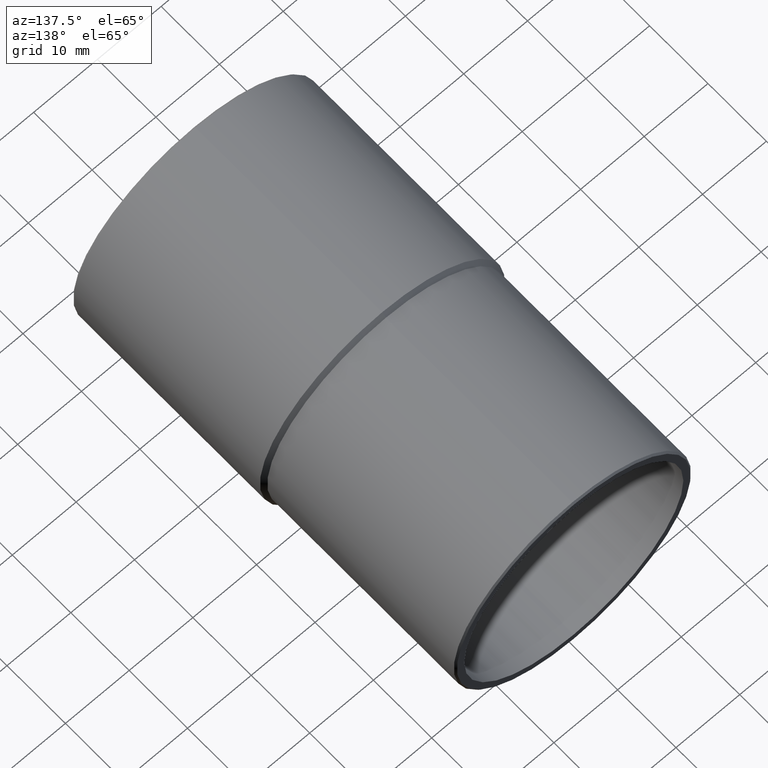
[diagram: clean part render]
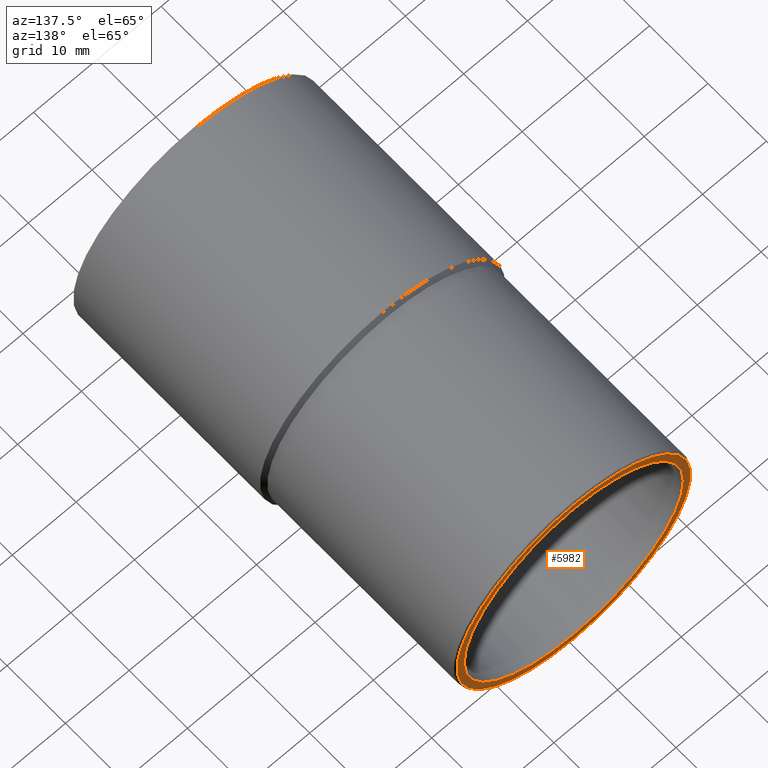
[diagram: same view with one face highlighted and labeled with its STEP entity id]
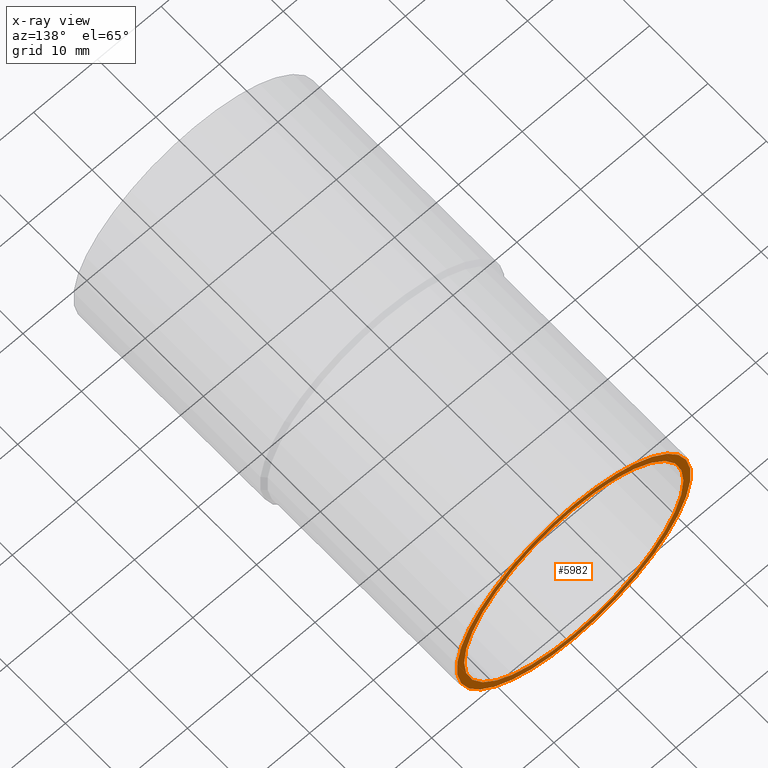
[diagram: x-ray of the same camera — body ghosted, the highlighted face saturated]
A machine part, auxiliary view. The second image highlights one B-rep face of the part: STEP entity #5982.
The next image is the same camera in x-ray: the body ghosted, the highlighted face saturated — about 0% of this face is hidden behind the body in this view.
In plain terms, the highlighted planar face has unit normal (0, 1, 0).
Its self-contained STEP definition (entity closure, byte-faithful):
#428 = CARTESIAN_POINT ( 'NONE',  ( 0.0000000000000000000, 32.50000000000000000, 0.0000000000000000000 ) ) ;
#631 = CIRCLE ( 'NONE', #3716, 17.19999999999999900 ) ;
#633 = VERTEX_POINT ( 'NONE', #4557 ) ;
#870 = VERTEX_POINT ( 'NONE', #5437 ) ;
#1320 = DIRECTION ( 'NONE',  ( 0.0000000000000000000, 0.0000000000000000000, 1.000000000000000000 ) ) ;
#1363 = ORIENTED_EDGE ( 'NONE', *, *, #10457, .T. ) ;
#1734 = EDGE_LOOP ( 'NONE', ( #8905, #4777 ) ) ;
#2038 = FACE_BOUND ( 'NONE', #3531, .T. ) ;
#2295 = CARTESIAN_POINT ( 'NONE',  ( 0.0000000000000000000, 32.50000000000000000, 0.0000000000000000000 ) ) ;
#2441 = PLANE ( 'NONE',  #4983 ) ;
#2445 = CARTESIAN_POINT ( 'NONE',  ( 0.0000000000000000000, 32.50000000000000000, -18.35000000000001900 ) ) ;
#2749 = CARTESIAN_POINT ( 'NONE',  ( 0.0000000000000000000, 32.50000000000000000, 0.0000000000000000000 ) ) ;
#2873 = CARTESIAN_POINT ( 'NONE',  ( 0.0000000000000000000, 32.50000000000000000, 0.0000000000000000000 ) ) ;
#3173 = DIRECTION ( 'NONE',  ( 0.0000000000000000000, 0.0000000000000000000, -1.000000000000000000 ) ) ;
#3531 = EDGE_LOOP ( 'NONE', ( #1363, #3824 ) ) ;
#3629 = DIRECTION ( 'NONE',  ( 0.0000000000000000000, 0.0000000000000000000, -1.000000000000000000 ) ) ;
#3716 = AXIS2_PLACEMENT_3D ( 'NONE', #2749, #8921, #3629 ) ;
#3749 = DIRECTION ( 'NONE',  ( 0.0000000000000000000, 0.0000000000000000000, 1.000000000000000000 ) ) ;
#3824 = ORIENTED_EDGE ( 'NONE', *, *, #7185, .T. ) ;
#3866 = AXIS2_PLACEMENT_3D ( 'NONE', #428, #6614, #1320 ) ;
#3953 = CIRCLE ( 'NONE', #7615, 18.35000000000001900 ) ;
#4190 = DIRECTION ( 'NONE',  ( 0.0000000000000000000, -0.0000000000000000000, 1.000000000000000000 ) ) ;
#4557 = CARTESIAN_POINT ( 'NONE',  ( 0.0000000000000000000, 32.50000000000000000, -17.19999999999999900 ) ) ;
#4777 = ORIENTED_EDGE ( 'NONE', *, *, #8086, .T. ) ;
#4983 = AXIS2_PLACEMENT_3D ( 'NONE', #8591, #9512, #4190 ) ;
#5093 = VERTEX_POINT ( 'NONE', #7645 ) ;
#5437 = CARTESIAN_POINT ( 'NONE',  ( 2.106392494533447400E-015, 32.50000000000000000, 17.19999999999999900 ) ) ;
#5685 = EDGE_CURVE ( 'NONE', #6652, #5093, #3953, .T. ) ;
#5982 = ADVANCED_FACE ( 'NONE', ( #6179, #2038 ), #2441, .T. ) ;
#6179 = FACE_OUTER_BOUND ( 'NONE', #1734, .T. ) ;
#6614 = DIRECTION ( 'NONE',  ( 0.0000000000000000000, 1.000000000000000000, 0.0000000000000000000 ) ) ;
#6652 = VERTEX_POINT ( 'NONE', #2445 ) ;
#6963 = AXIS2_PLACEMENT_3D ( 'NONE', #2295, #8451, #3173 ) ;
#7185 = EDGE_CURVE ( 'NONE', #870, #633, #631, .T. ) ;
#7424 = CIRCLE ( 'NONE', #3866, 18.35000000000001900 ) ;
#7615 = AXIS2_PLACEMENT_3D ( 'NONE', #2873, #9041, #3749 ) ;
#7645 = CARTESIAN_POINT ( 'NONE',  ( 2.262534961424736400E-015, 32.50000000000000000, 18.35000000000001900 ) ) ;
#8086 = EDGE_CURVE ( 'NONE', #5093, #6652, #7424, .T. ) ;
#8451 = DIRECTION ( 'NONE',  ( 0.0000000000000000000, -1.000000000000000000, 0.0000000000000000000 ) ) ;
#8591 = CARTESIAN_POINT ( 'NONE',  ( 0.0000000000000000000, 32.50000000000000000, 0.0000000000000000000 ) ) ;
#8905 = ORIENTED_EDGE ( 'NONE', *, *, #5685, .T. ) ;
#8921 = DIRECTION ( 'NONE',  ( 0.0000000000000000000, -1.000000000000000000, 0.0000000000000000000 ) ) ;
#9041 = DIRECTION ( 'NONE',  ( 0.0000000000000000000, 1.000000000000000000, 0.0000000000000000000 ) ) ;
#9512 = DIRECTION ( 'NONE',  ( 0.0000000000000000000, 1.000000000000000000, 0.0000000000000000000 ) ) ;
#10457 = EDGE_CURVE ( 'NONE', #633, #870, #10922, .T. ) ;
#10922 = CIRCLE ( 'NONE', #6963, 17.19999999999999900 ) ;